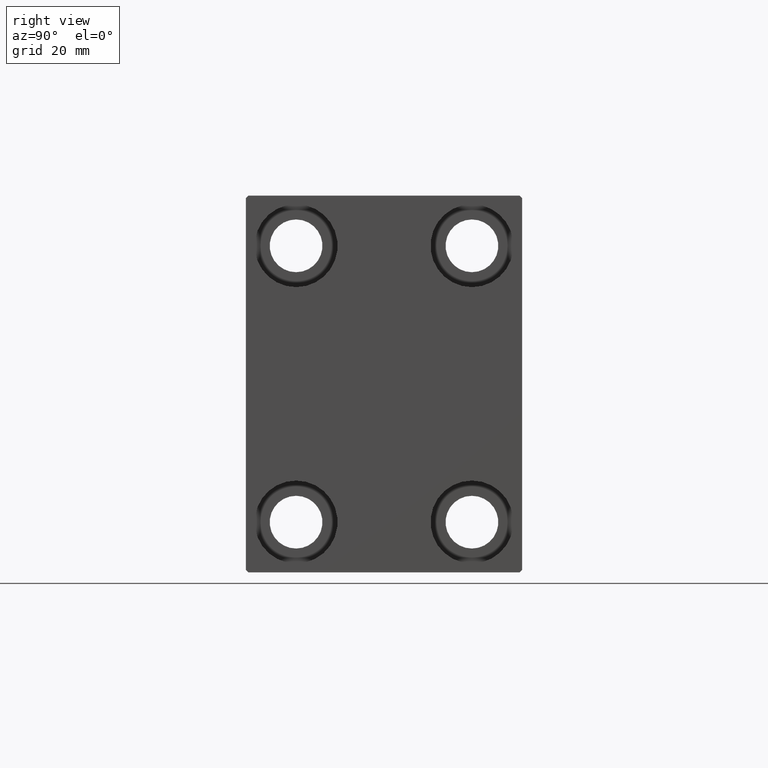
[diagram: clean part render]
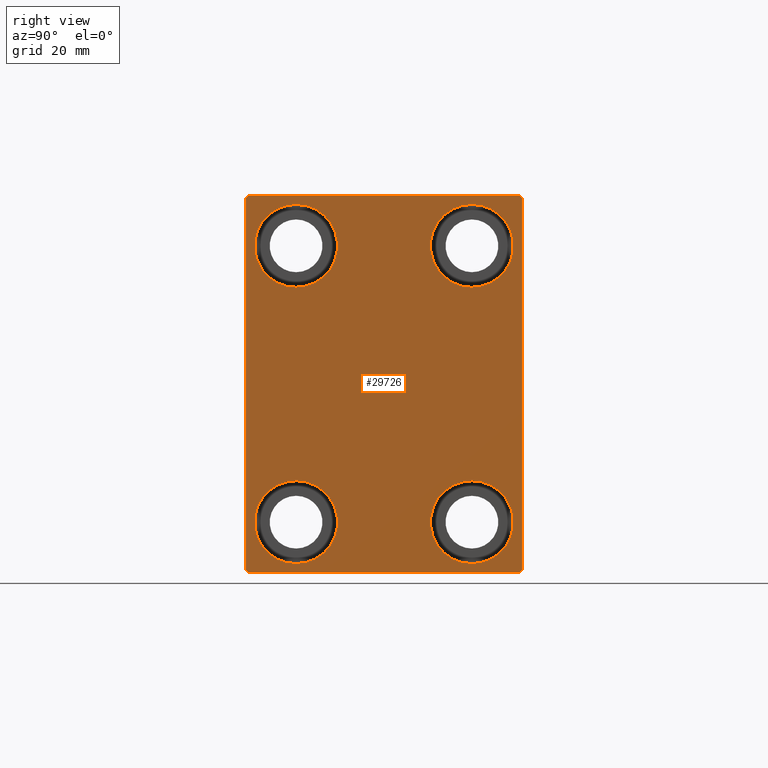
[diagram: same view with one face highlighted and labeled with its STEP entity id]
A machine part, right view. The second image highlights one B-rep face of the part: STEP entity #29726.
In plain terms, the highlighted planar face has unit normal (1, 0, 0).
Its self-contained STEP definition (entity closure, byte-faithful):
#911 = EDGE_CURVE ( 'NONE', #29076, #40186, #25432, .T. ) ;
#1093 = ORIENTED_EDGE ( 'NONE', *, *, #26959, .T. ) ;
#1669 = ORIENTED_EDGE ( 'NONE', *, *, #2276, .T. ) ;
#1819 = AXIS2_PLACEMENT_3D ( 'NONE', #9606, #23979, #41065 ) ;
#1866 = DIRECTION ( 'NONE',  ( 0.000000000000000000, 0.000000000000000000, -1.000000000000000000 ) ) ;
#1956 = DIRECTION ( 'NONE',  ( 0.000000000000000000, 0.000000000000000000, 1.000000000000000000 ) ) ;
#2131 = FACE_BOUND ( 'NONE', #14907, .T. ) ;
#2132 = EDGE_CURVE ( 'NONE', #21059, #4166, #6491, .T. ) ;
#2276 = EDGE_CURVE ( 'NONE', #10962, #11916, #31200, .T. ) ;
#2495 = VERTEX_POINT ( 'NONE', #7984 ) ;
#2526 = CARTESIAN_POINT ( 'NONE',  ( 75.00000000000000000, -17.49999999999999645, 27.49999999999999645 ) ) ;
#4166 = VERTEX_POINT ( 'NONE', #19891 ) ;
#4191 = ORIENTED_EDGE ( 'NONE', *, *, #10311, .T. ) ;
#4760 = EDGE_CURVE ( 'NONE', #33627, #6161, #11907, .T. ) ;
#4802 = DIRECTION ( 'NONE',  ( -1.000000000000000000, -0.000000000000000000, -0.000000000000000000 ) ) ;
#4844 = PLANE ( 'NONE',  #41516 ) ;
#4895 = DIRECTION ( 'NONE',  ( -0.000000000000000000, 0.7071067811865474617, 0.7071067811865474617 ) ) ;
#5064 = DIRECTION ( 'NONE',  ( 1.000000000000000000, 0.000000000000000000, 0.000000000000000000 ) ) ;
#5309 = EDGE_CURVE ( 'NONE', #6161, #33627, #9748, .T. ) ;
#5509 = FACE_OUTER_BOUND ( 'NONE', #42170, .T. ) ;
#5678 = CIRCLE ( 'NONE', #37977, 8.250000000000000000 ) ;
#6161 = VERTEX_POINT ( 'NONE', #19851 ) ;
#6491 = LINE ( 'NONE', #34559, #25464 ) ;
#6650 = LINE ( 'NONE', #41239, #40999 ) ;
#6841 = EDGE_LOOP ( 'NONE', ( #28724, #11564 ) ) ;
#6848 = CARTESIAN_POINT ( 'NONE',  ( 75.00000000000000000, 17.50000000000000355, 35.74999999999999289 ) ) ;
#6973 = CARTESIAN_POINT ( 'NONE',  ( 75.00000000000000000, 32.25000000000019185, 32.24999999999975131 ) ) ;
#7984 = CARTESIAN_POINT ( 'NONE',  ( 75.00000000000000000, -27.00000000000000355, -37.50000000000000000 ) ) ;
#8062 = CARTESIAN_POINT ( 'NONE',  ( 75.00000000000000000, -17.50000000000000355, -19.25000000000000355 ) ) ;
#8153 = CARTESIAN_POINT ( 'NONE',  ( 75.00000000000000000, 27.49999999999999645, 37.50000000000000711 ) ) ;
#8176 = DIRECTION ( 'NONE',  ( 0.000000000000000000, 0.000000000000000000, 1.000000000000000000 ) ) ;
#8249 = AXIS2_PLACEMENT_3D ( 'NONE', #20274, #16902, #22968 ) ;
#8259 = VERTEX_POINT ( 'NONE', #26049 ) ;
#8317 = VECTOR ( 'NONE', #20680, 1000.000000000000000 ) ;
#8394 = LINE ( 'NONE', #21874, #41299 ) ;
#8597 = DIRECTION ( 'NONE',  ( 0.000000000000000000, 0.000000000000000000, 1.000000000000000000 ) ) ;
#8832 = LINE ( 'NONE', #22539, #34116 ) ;
#8914 = CARTESIAN_POINT ( 'NONE',  ( 75.00000000000000000, 17.49999999999999645, -27.50000000000000355 ) ) ;
#8957 = CIRCLE ( 'NONE', #8249, 8.250000000000000000 ) ;
#9466 = EDGE_CURVE ( 'NONE', #23762, #2495, #25881, .T. ) ;
#9606 = CARTESIAN_POINT ( 'NONE',  ( 75.00000000000000000, -17.49999999999999645, 27.49999999999999645 ) ) ;
#9748 = CIRCLE ( 'NONE', #41314, 8.249999999999992895 ) ;
#9842 = ORIENTED_EDGE ( 'NONE', *, *, #911, .T. ) ;
#9850 = ORIENTED_EDGE ( 'NONE', *, *, #42076, .T. ) ;
#10311 = EDGE_CURVE ( 'NONE', #8259, #36387, #21854, .T. ) ;
#10360 = CARTESIAN_POINT ( 'NONE',  ( 75.00000000000000000, 17.49999999999999645, -27.50000000000000355 ) ) ;
#10457 = DIRECTION ( 'NONE',  ( 0.000000000000000000, 1.000000000000000000, 0.000000000000000000 ) ) ;
#10962 = VERTEX_POINT ( 'NONE', #33806 ) ;
#11304 = VECTOR ( 'NONE', #4895, 1000.000000000000114 ) ;
#11564 = ORIENTED_EDGE ( 'NONE', *, *, #15933, .T. ) ;
#11907 = CIRCLE ( 'NONE', #1819, 8.249999999999992895 ) ;
#11916 = VERTEX_POINT ( 'NONE', #35812 ) ;
#13448 = AXIS2_PLACEMENT_3D ( 'NONE', #10360, #16878, #34185 ) ;
#13453 = EDGE_LOOP ( 'NONE', ( #9842, #27580 ) ) ;
#13489 = ORIENTED_EDGE ( 'NONE', *, *, #4760, .T. ) ;
#14148 = VECTOR ( 'NONE', #35126, 1000.000000000000000 ) ;
#14661 = DIRECTION ( 'NONE',  ( -1.000000000000000000, -0.000000000000000000, -0.000000000000000000 ) ) ;
#14907 = EDGE_LOOP ( 'NONE', ( #13489, #33552 ) ) ;
#15316 = DIRECTION ( 'NONE',  ( -0.000000000000000000, 0.7071067811865474617, -0.7071067811865474617 ) ) ;
#15357 = DIRECTION ( 'NONE',  ( 0.000000000000000000, -0.7071067811865474617, -0.7071067811865474617 ) ) ;
#15558 = ORIENTED_EDGE ( 'NONE', *, *, #16596, .T. ) ;
#15933 = EDGE_CURVE ( 'NONE', #35459, #27740, #8957, .T. ) ;
#16596 = EDGE_CURVE ( 'NONE', #36387, #33286, #8832, .T. ) ;
#16878 = DIRECTION ( 'NONE',  ( -1.000000000000000000, -0.000000000000000000, -0.000000000000000000 ) ) ;
#16895 = CARTESIAN_POINT ( 'NONE',  ( 75.00000000000000000, 17.50000000000000355, 27.49999999999999645 ) ) ;
#16902 = DIRECTION ( 'NONE',  ( -1.000000000000000000, -0.000000000000000000, -0.000000000000000000 ) ) ;
#17120 = DIRECTION ( 'NONE',  ( -1.000000000000000000, -0.000000000000000000, -0.000000000000000000 ) ) ;
#17501 = EDGE_CURVE ( 'NONE', #33286, #23762, #8394, .T. ) ;
#18562 = DIRECTION ( 'NONE',  ( 0.000000000000000000, 0.000000000000000000, -1.000000000000000000 ) ) ;
#18676 = EDGE_CURVE ( 'NONE', #4166, #8259, #37750, .T. ) ;
#19525 = ORIENTED_EDGE ( 'NONE', *, *, #2132, .T. ) ;
#19851 = CARTESIAN_POINT ( 'NONE',  ( 75.00000000000000000, -17.49999999999999645, 35.74999999999999289 ) ) ;
#19866 = ORIENTED_EDGE ( 'NONE', *, *, #17501, .T. ) ;
#19891 = CARTESIAN_POINT ( 'NONE',  ( 75.00000000000000000, 27.49999999999999645, 37.00000000000001421 ) ) ;
#20239 = CARTESIAN_POINT ( 'NONE',  ( 75.00000000000000000, 27.00000000000000355, -37.50000000000000000 ) ) ;
#20274 = CARTESIAN_POINT ( 'NONE',  ( 75.00000000000000000, -17.50000000000000355, -27.50000000000000355 ) ) ;
#20669 = AXIS2_PLACEMENT_3D ( 'NONE', #35790, #14661, #8597 ) ;
#20680 = DIRECTION ( 'NONE',  ( -0.000000000000000000, -0.7071067811865426878, 0.7071067811865524577 ) ) ;
#20924 = DIRECTION ( 'NONE',  ( 0.000000000000000000, 0.000000000000000000, 1.000000000000000000 ) ) ;
#21059 = VERTEX_POINT ( 'NONE', #22050 ) ;
#21854 = LINE ( 'NONE', #8153, #14148 ) ;
#21874 = CARTESIAN_POINT ( 'NONE',  ( 75.00000000000000000, -27.50000000000000355, 37.50000000000000000 ) ) ;
#22050 = CARTESIAN_POINT ( 'NONE',  ( 75.00000000000000000, 27.50000000000000355, -37.00000000000000000 ) ) ;
#22539 = CARTESIAN_POINT ( 'NONE',  ( 75.00000000000000000, -32.25000000000000711, 32.25000000000000711 ) ) ;
#22968 = DIRECTION ( 'NONE',  ( 0.000000000000000000, 0.000000000000000000, 1.000000000000000000 ) ) ;
#23701 = EDGE_CURVE ( 'NONE', #42708, #21059, #39280, .T. ) ;
#23762 = VERTEX_POINT ( 'NONE', #43966 ) ;
#23979 = DIRECTION ( 'NONE',  ( -1.000000000000000000, -0.000000000000000000, -0.000000000000000000 ) ) ;
#25432 = CIRCLE ( 'NONE', #41916, 8.249999999999992895 ) ;
#25464 = VECTOR ( 'NONE', #33065, 1000.000000000000000 ) ;
#25517 = CARTESIAN_POINT ( 'NONE',  ( 75.00000000000000000, 0.000000000000000000, 0.000000000000000000 ) ) ;
#25881 = LINE ( 'NONE', #35547, #34243 ) ;
#25964 = FACE_BOUND ( 'NONE', #6841, .T. ) ;
#26008 = CARTESIAN_POINT ( 'NONE',  ( 75.00000000000000000, -17.49999999999999645, 19.25000000000000000 ) ) ;
#26049 = CARTESIAN_POINT ( 'NONE',  ( 75.00000000000000000, 27.00000000000001066, 37.50000000000000711 ) ) ;
#26168 = AXIS2_PLACEMENT_3D ( 'NONE', #8914, #40146, #1956 ) ;
#26576 = DIRECTION ( 'NONE',  ( -1.000000000000000000, -0.000000000000000000, -0.000000000000000000 ) ) ;
#26821 = ORIENTED_EDGE ( 'NONE', *, *, #9466, .T. ) ;
#26959 = EDGE_CURVE ( 'NONE', #11916, #10962, #40007, .T. ) ;
#27580 = ORIENTED_EDGE ( 'NONE', *, *, #29230, .T. ) ;
#27740 = VERTEX_POINT ( 'NONE', #36774 ) ;
#27955 = CARTESIAN_POINT ( 'NONE',  ( 75.00000000000000000, -27.00000000000001776, 37.50000000000000000 ) ) ;
#28238 = EDGE_LOOP ( 'NONE', ( #1093, #1669 ) ) ;
#28724 = ORIENTED_EDGE ( 'NONE', *, *, #32754, .T. ) ;
#29076 = VERTEX_POINT ( 'NONE', #34894 ) ;
#29230 = EDGE_CURVE ( 'NONE', #40186, #29076, #37885, .T. ) ;
#29726 = ADVANCED_FACE ( 'NONE', ( #35857, #2131, #39888, #25964, #5509 ), #4844, .T. ) ;
#31135 = ORIENTED_EDGE ( 'NONE', *, *, #23701, .T. ) ;
#31200 = CIRCLE ( 'NONE', #26168, 8.250000000000000000 ) ;
#31284 = ORIENTED_EDGE ( 'NONE', *, *, #18676, .T. ) ;
#32754 = EDGE_CURVE ( 'NONE', #27740, #35459, #5678, .T. ) ;
#33065 = DIRECTION ( 'NONE',  ( 0.000000000000000000, -9.251858538542970348E-17, 1.000000000000000000 ) ) ;
#33286 = VERTEX_POINT ( 'NONE', #34592 ) ;
#33552 = ORIENTED_EDGE ( 'NONE', *, *, #5309, .T. ) ;
#33627 = VERTEX_POINT ( 'NONE', #26008 ) ;
#33806 = CARTESIAN_POINT ( 'NONE',  ( 75.00000000000000000, 17.49999999999999645, -19.25000000000000355 ) ) ;
#34116 = VECTOR ( 'NONE', #15357, 1000.000000000000114 ) ;
#34185 = DIRECTION ( 'NONE',  ( 0.000000000000000000, 0.000000000000000000, 1.000000000000000000 ) ) ;
#34243 = VECTOR ( 'NONE', #15316, 1000.000000000000114 ) ;
#34559 = CARTESIAN_POINT ( 'NONE',  ( 75.00000000000000000, 27.50000000000000355, -37.50000000000000000 ) ) ;
#34592 = CARTESIAN_POINT ( 'NONE',  ( 75.00000000000000000, -27.50000000000000355, 37.00000000000001421 ) ) ;
#34894 = CARTESIAN_POINT ( 'NONE',  ( 75.00000000000000000, 17.50000000000000355, 19.25000000000000000 ) ) ;
#35126 = DIRECTION ( 'NONE',  ( 0.000000000000000000, -1.000000000000000000, -1.261617073437677999E-16 ) ) ;
#35459 = VERTEX_POINT ( 'NONE', #8062 ) ;
#35547 = CARTESIAN_POINT ( 'NONE',  ( 75.00000000000000000, -32.25000000000000000, -32.25000000000000000 ) ) ;
#35686 = CARTESIAN_POINT ( 'NONE',  ( 75.00000000000000000, 32.25000000000000000, -32.25000000000000000 ) ) ;
#35790 = CARTESIAN_POINT ( 'NONE',  ( 75.00000000000000000, 17.50000000000000355, 27.49999999999999645 ) ) ;
#35812 = CARTESIAN_POINT ( 'NONE',  ( 75.00000000000000000, 17.49999999999999645, -35.75000000000000711 ) ) ;
#35857 = FACE_BOUND ( 'NONE', #28238, .T. ) ;
#36387 = VERTEX_POINT ( 'NONE', #27955 ) ;
#36774 = CARTESIAN_POINT ( 'NONE',  ( 75.00000000000000000, -17.50000000000000355, -35.75000000000000711 ) ) ;
#37750 = LINE ( 'NONE', #6973, #8317 ) ;
#37885 = CIRCLE ( 'NONE', #20669, 8.249999999999992895 ) ;
#37977 = AXIS2_PLACEMENT_3D ( 'NONE', #38960, #4802, #8176 ) ;
#38960 = CARTESIAN_POINT ( 'NONE',  ( 75.00000000000000000, -17.50000000000000355, -27.50000000000000355 ) ) ;
#39280 = LINE ( 'NONE', #35686, #11304 ) ;
#39888 = FACE_BOUND ( 'NONE', #13453, .T. ) ;
#40007 = CIRCLE ( 'NONE', #13448, 8.250000000000000000 ) ;
#40146 = DIRECTION ( 'NONE',  ( -1.000000000000000000, -0.000000000000000000, -0.000000000000000000 ) ) ;
#40186 = VERTEX_POINT ( 'NONE', #6848 ) ;
#40286 = DIRECTION ( 'NONE',  ( 0.000000000000000000, 0.000000000000000000, 1.000000000000000000 ) ) ;
#40999 = VECTOR ( 'NONE', #10457, 1000.000000000000000 ) ;
#41065 = DIRECTION ( 'NONE',  ( 0.000000000000000000, 0.000000000000000000, 1.000000000000000000 ) ) ;
#41239 = CARTESIAN_POINT ( 'NONE',  ( 75.00000000000000000, -27.50000000000000355, -37.50000000000000000 ) ) ;
#41299 = VECTOR ( 'NONE', #1866, 1000.000000000000000 ) ;
#41314 = AXIS2_PLACEMENT_3D ( 'NONE', #2526, #26576, #40286 ) ;
#41516 = AXIS2_PLACEMENT_3D ( 'NONE', #25517, #5064, #18562 ) ;
#41916 = AXIS2_PLACEMENT_3D ( 'NONE', #16895, #17120, #20924 ) ;
#42076 = EDGE_CURVE ( 'NONE', #2495, #42708, #6650, .T. ) ;
#42170 = EDGE_LOOP ( 'NONE', ( #4191, #15558, #19866, #26821, #9850, #31135, #19525, #31284 ) ) ;
#42708 = VERTEX_POINT ( 'NONE', #20239 ) ;
#43966 = CARTESIAN_POINT ( 'NONE',  ( 75.00000000000000000, -27.50000000000000355, -37.00000000000000000 ) ) ;